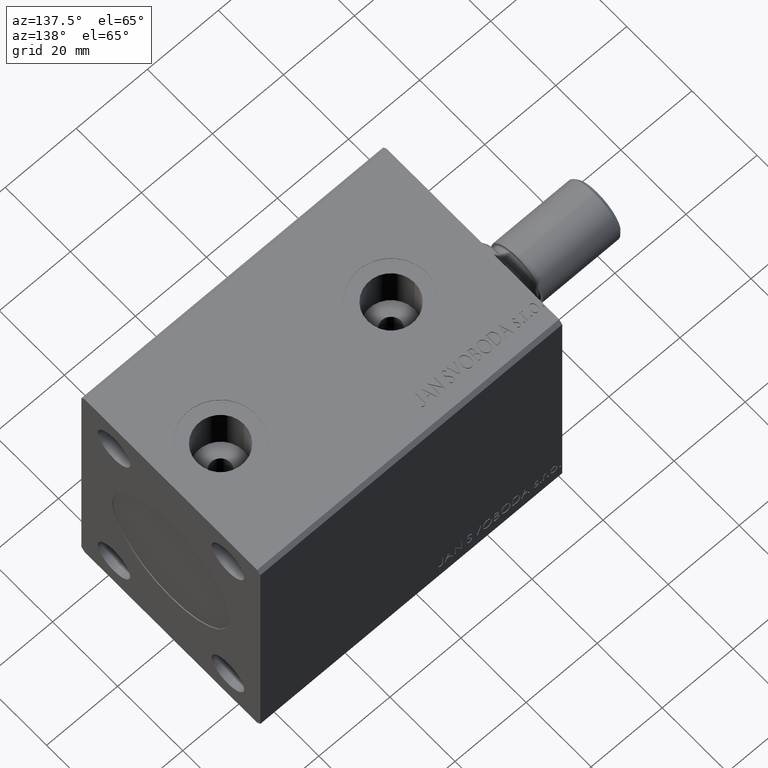
[diagram: clean part render]
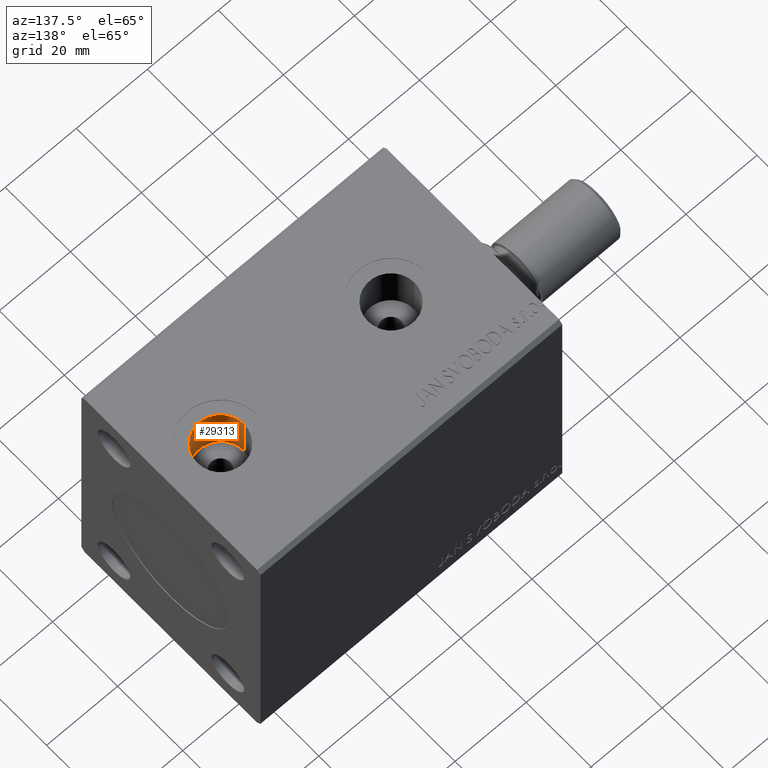
[diagram: same view with one face highlighted and labeled with its STEP entity id]
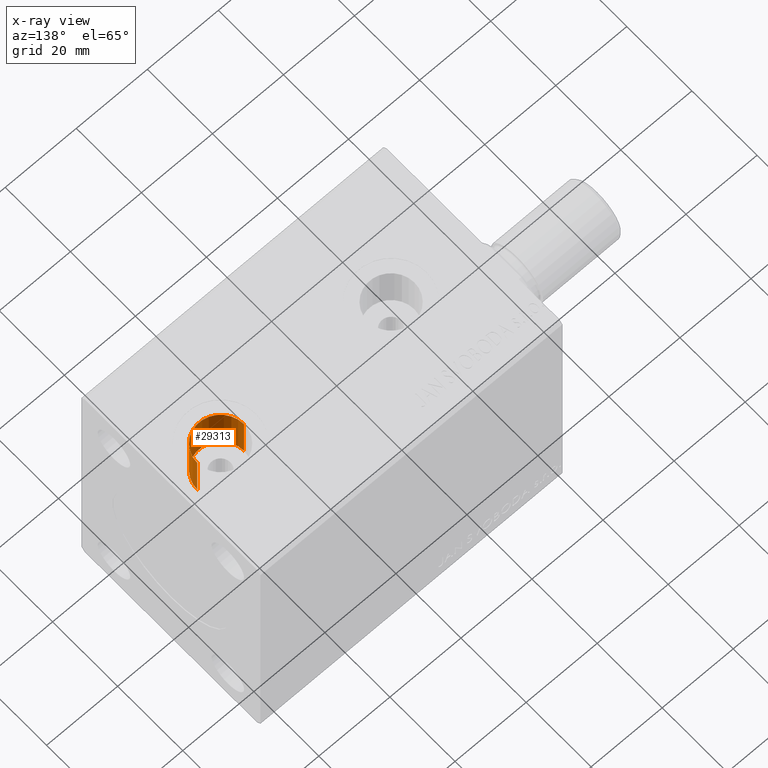
[diagram: x-ray of the same camera — body ghosted, the highlighted face saturated]
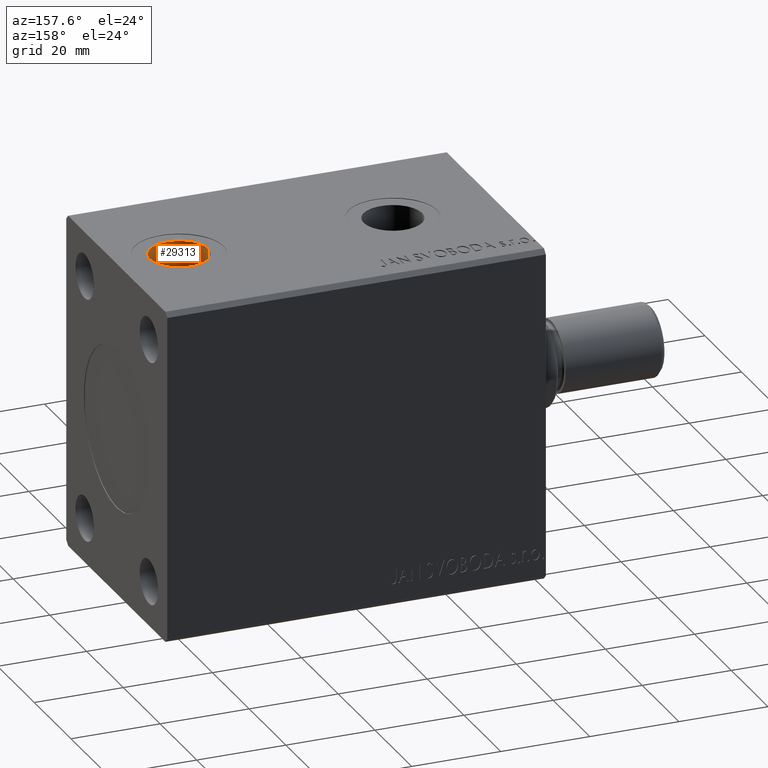
[diagram: same view with one face highlighted and labeled with its STEP entity id]
A machine part, auxiliary view. The second image highlights one B-rep face of the part: STEP entity #29313.
The next image is the same camera in x-ray: the body ghosted, the highlighted face saturated — about 0% of this face is hidden behind the body in this view.
A second angle (auxiliary view) of the same face is appended — the face is thin or edge-on in the first view.
In plain terms, the highlighted cylindrical surface (edge-blend (fillet) strip) has radius 6.58 mm, axis along (0, 0, 1).
Its self-contained STEP definition (entity closure, byte-faithful):
#1805 = ORIENTED_EDGE ( 'NONE', *, *, #33365, .F. ) ;
#1974 = CARTESIAN_POINT ( 'NONE',  ( 71.00000000000001421, -3.300664193009419462E-16, 24.24000000000000554 ) ) ;
#2199 = CARTESIAN_POINT ( 'NONE',  ( 77.58000000000001251, -3.300664193009419462E-16, 24.24000000000000554 ) ) ;
#5568 = CYLINDRICAL_SURFACE ( 'NONE', #24386, 6.580000000000002736 ) ;
#5622 = ORIENTED_EDGE ( 'NONE', *, *, #29405, .F. ) ;
#5838 = ORIENTED_EDGE ( 'NONE', *, *, #35423, .T. ) ;
#6234 = FACE_OUTER_BOUND ( 'NONE', #6567, .T. ) ;
#6567 = EDGE_LOOP ( 'NONE', ( #1805, #5838, #8831, #5622 ) ) ;
#7484 = VERTEX_POINT ( 'NONE', #13284 ) ;
#8603 = LINE ( 'NONE', #33069, #15719 ) ;
#8831 = ORIENTED_EDGE ( 'NONE', *, *, #32609, .T. ) ;
#9007 = CARTESIAN_POINT ( 'NONE',  ( 77.58000000000001251, -3.300664193009419462E-16, 24.24000000000000554 ) ) ;
#12203 = VECTOR ( 'NONE', #40160, 1000.000000000000000 ) ;
#13284 = CARTESIAN_POINT ( 'NONE',  ( 77.58000000000001251, -3.300664193009419462E-16, 37.40000000000000568 ) ) ;
#14117 = DIRECTION ( 'NONE',  ( 1.000000000000000000, 0.000000000000000000, 0.000000000000000000 ) ) ;
#14527 = AXIS2_PLACEMENT_3D ( 'NONE', #31648, #27822, #14117 ) ;
#15719 = VECTOR ( 'NONE', #29473, 1000.000000000000000 ) ;
#15860 = CARTESIAN_POINT ( 'NONE',  ( 64.42000000000000171, 4.757511745380166027E-16, 37.40000000000000568 ) ) ;
#16560 = DIRECTION ( 'NONE',  ( 1.000000000000000000, 0.000000000000000000, 0.000000000000000000 ) ) ;
#16685 = CARTESIAN_POINT ( 'NONE',  ( 64.42000000000000171, 4.757511745380166027E-16, 24.24000000000000554 ) ) ;
#18202 = VERTEX_POINT ( 'NONE', #9007 ) ;
#22296 = VERTEX_POINT ( 'NONE', #15860 ) ;
#24386 = AXIS2_PLACEMENT_3D ( 'NONE', #1974, #37008, #16560 ) ;
#24590 = CIRCLE ( 'NONE', #14527, 6.580000000000002736 ) ;
#27139 = CIRCLE ( 'NONE', #29284, 6.580000000000002736 ) ;
#27403 = VERTEX_POINT ( 'NONE', #16685 ) ;
#27822 = DIRECTION ( 'NONE',  ( 0.000000000000000000, 0.000000000000000000, 1.000000000000000000 ) ) ;
#29284 = AXIS2_PLACEMENT_3D ( 'NONE', #30541, #34127, #44254 ) ;
#29313 = ADVANCED_FACE ( 'NONE', ( #6234 ), #5568, .F. ) ;
#29405 = EDGE_CURVE ( 'NONE', #18202, #7484, #32741, .T. ) ;
#29473 = DIRECTION ( 'NONE',  ( -0.000000000000000000, -0.000000000000000000, 1.000000000000000000 ) ) ;
#30541 = CARTESIAN_POINT ( 'NONE',  ( 71.00000000000001421, -3.300664193009419462E-16, 24.24000000000000554 ) ) ;
#31648 = CARTESIAN_POINT ( 'NONE',  ( 71.00000000000001421, -3.300664193009419462E-16, 37.40000000000000568 ) ) ;
#32609 = EDGE_CURVE ( 'NONE', #22296, #7484, #24590, .T. ) ;
#32741 = LINE ( 'NONE', #2199, #12203 ) ;
#33069 = CARTESIAN_POINT ( 'NONE',  ( 64.42000000000000171, 4.757511745380166027E-16, 24.24000000000000554 ) ) ;
#33365 = EDGE_CURVE ( 'NONE', #27403, #18202, #27139, .T. ) ;
#34127 = DIRECTION ( 'NONE',  ( 0.000000000000000000, 0.000000000000000000, 1.000000000000000000 ) ) ;
#35423 = EDGE_CURVE ( 'NONE', #27403, #22296, #8603, .T. ) ;
#37008 = DIRECTION ( 'NONE',  ( -0.000000000000000000, -0.000000000000000000, 1.000000000000000000 ) ) ;
#40160 = DIRECTION ( 'NONE',  ( -0.000000000000000000, -0.000000000000000000, 1.000000000000000000 ) ) ;
#44254 = DIRECTION ( 'NONE',  ( 1.000000000000000000, 0.000000000000000000, 0.000000000000000000 ) ) ;